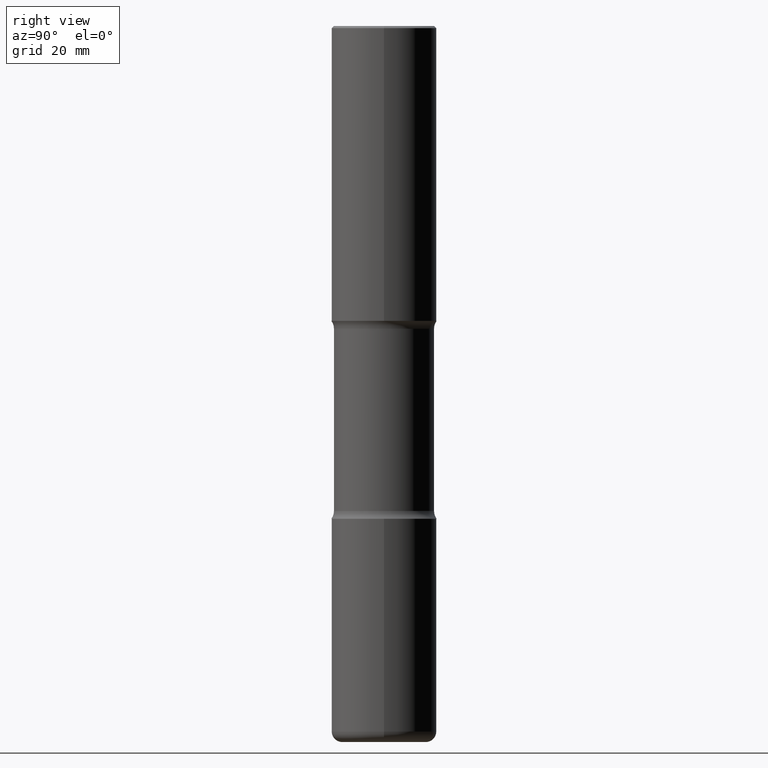
[diagram: clean part render]
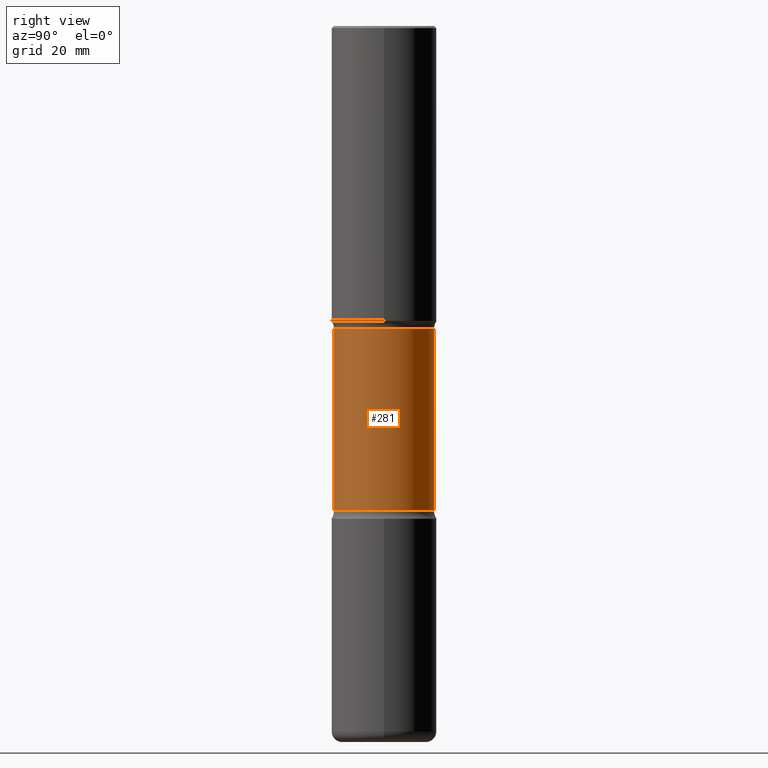
[diagram: same view with one face highlighted and labeled with its STEP entity id]
A machine part, right view. The second image highlights one B-rep face of the part: STEP entity #281.
In plain terms, the highlighted cylindrical surface (partial cylindrical patch) has radius 11.8745 mm, axis along (0, -0, -1).
Its self-contained STEP definition (entity closure, byte-faithful):
#32 = CARTESIAN_POINT ( 'NONE',  ( 3.264535051818397450E-15, 0.4674999999999899791, -2.830431050576254215 ) ) ;
#43 = EDGE_CURVE ( 'NONE', #497, #387, #315, .T. ) ;
#55 = CARTESIAN_POINT ( 'NONE',  ( 3.264535051818492903E-15, 0.4674999999999766009, -6.692899999999999849 ) ) ;
#58 = ORIENTED_EDGE ( 'NONE', *, *, #484, .F. ) ;
#65 = CARTESIAN_POINT ( 'NONE',  ( 1.107980415843712738E-28, -1.582616033701247086E-14, -4.531768949423746307 ) ) ;
#70 = DIRECTION ( 'NONE',  ( 2.478950746902978790E-29, -3.443533294061476764E-15, -1.000000000000000000 ) ) ;
#101 = DIRECTION ( 'NONE',  ( 2.478950746902979070E-29, -3.443533294061476764E-15, -1.000000000000000000 ) ) ;
#105 = AXIS2_PLACEMENT_3D ( 'NONE', #65, #325, #249 ) ;
#119 = CARTESIAN_POINT ( 'NONE',  ( -3.291838451780614217E-15, -0.4675000000000157918, -4.531768949423744530 ) ) ;
#152 = FACE_OUTER_BOUND ( 'NONE', #413, .T. ) ;
#158 = VECTOR ( 'NONE', #424, 39.37007874015748143 ) ;
#184 = VERTEX_POINT ( 'NONE', #270 ) ;
#244 = CARTESIAN_POINT ( 'NONE',  ( 1.643714159041834644E-28, -2.326808706250185533E-14, -6.692899999999998961 ) ) ;
#245 = DIRECTION ( 'NONE',  ( 6.982962677686265922E-15, 1.000000000000000000, -2.337410048054985186E-15 ) ) ;
#249 = DIRECTION ( 'NONE',  ( 6.982962677686266711E-15, 1.000000000000000000, -3.506115072082477581E-15 ) ) ;
#261 = ORIENTED_EDGE ( 'NONE', *, *, #478, .T. ) ;
#270 = CARTESIAN_POINT ( 'NONE',  ( -3.291838451780658393E-15, -0.4675000000000099076, -2.830431050576251106 ) ) ;
#278 = CARTESIAN_POINT ( 'NONE',  ( 3.264535051818439654E-15, 0.4674999999999840949, -4.531768949423748083 ) ) ;
#281 = ADVANCED_FACE ( 'NONE', ( #152 ), #322, .T. ) ;
#292 = CARTESIAN_POINT ( 'NONE',  ( -3.207282813958025392E-15, -0.4675000000000231748, -6.692899999999998073 ) ) ;
#315 = LINE ( 'NONE', #55, #482 ) ;
#322 = CYLINDRICAL_SURFACE ( 'NONE', #556, 0.4674999999999998601 ) ;
#325 = DIRECTION ( 'NONE',  ( 2.478950746902978790E-29, -3.443533294061476764E-15, -1.000000000000000000 ) ) ;
#335 = VERTEX_POINT ( 'NONE', #119 ) ;
#362 = EDGE_CURVE ( 'NONE', #497, #184, #385, .T. ) ;
#369 = CARTESIAN_POINT ( 'NONE',  ( 6.862271303354788236E-29, -9.967546637882530720E-15, -2.830431050576252883 ) ) ;
#385 = CIRCLE ( 'NONE', #391, 0.4674999999999999156 ) ;
#387 = VERTEX_POINT ( 'NONE', #278 ) ;
#391 = AXIS2_PLACEMENT_3D ( 'NONE', #369, #454, #553 ) ;
#394 = ORIENTED_EDGE ( 'NONE', *, *, #362, .T. ) ;
#413 = EDGE_LOOP ( 'NONE', ( #394, #261, #58, #535 ) ) ;
#424 = DIRECTION ( 'NONE',  ( 2.478950746902979070E-29, -3.443533294061476764E-15, -1.000000000000000000 ) ) ;
#454 = DIRECTION ( 'NONE',  ( 2.478950746902978790E-29, -3.443533294061476764E-15, -1.000000000000000000 ) ) ;
#475 = CIRCLE ( 'NONE', #105, 0.4674999999999999156 ) ;
#478 = EDGE_CURVE ( 'NONE', #184, #335, #549, .T. ) ;
#482 = VECTOR ( 'NONE', #101, 39.37007874015748143 ) ;
#484 = EDGE_CURVE ( 'NONE', #387, #335, #475, .T. ) ;
#497 = VERTEX_POINT ( 'NONE', #32 ) ;
#535 = ORIENTED_EDGE ( 'NONE', *, *, #43, .F. ) ;
#549 = LINE ( 'NONE', #292, #158 ) ;
#553 = DIRECTION ( 'NONE',  ( 6.982962677686266711E-15, 1.000000000000000000, -3.506115072082477581E-15 ) ) ;
#556 = AXIS2_PLACEMENT_3D ( 'NONE', #244, #70, #245 ) ;